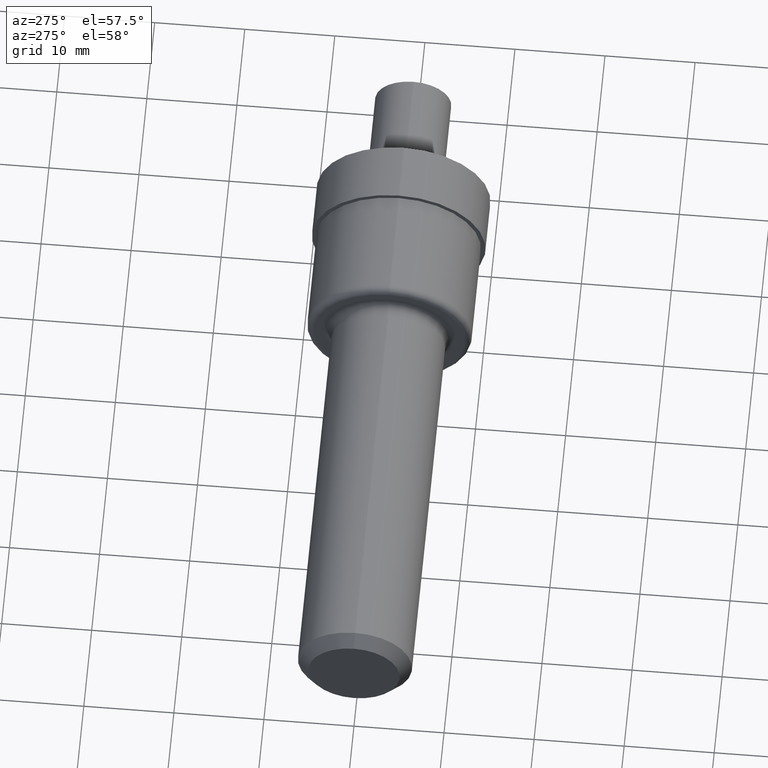
[diagram: clean part render]
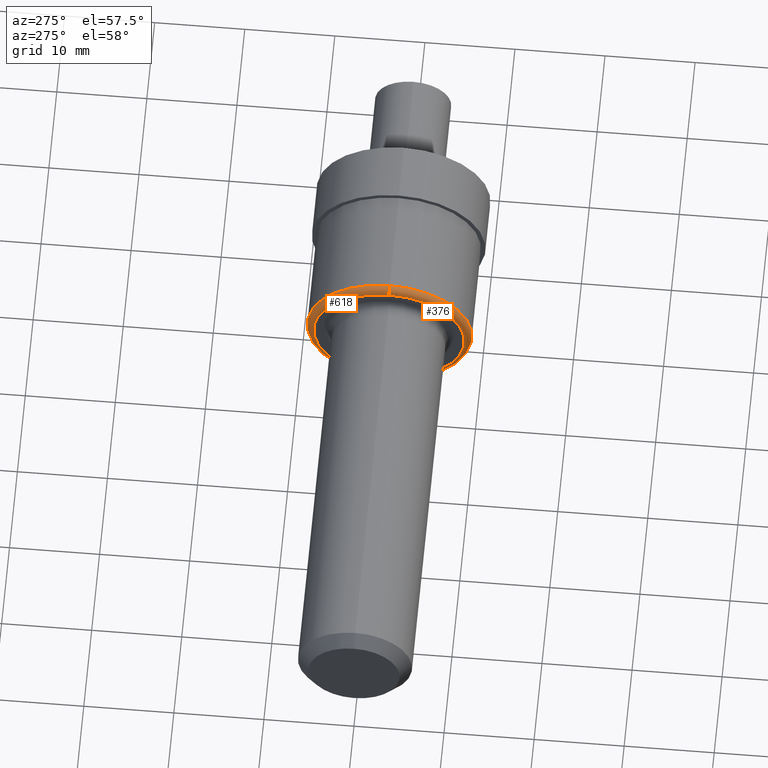
[diagram: same view with one multi-face feature highlighted, each face labeled with its STEP entity id]
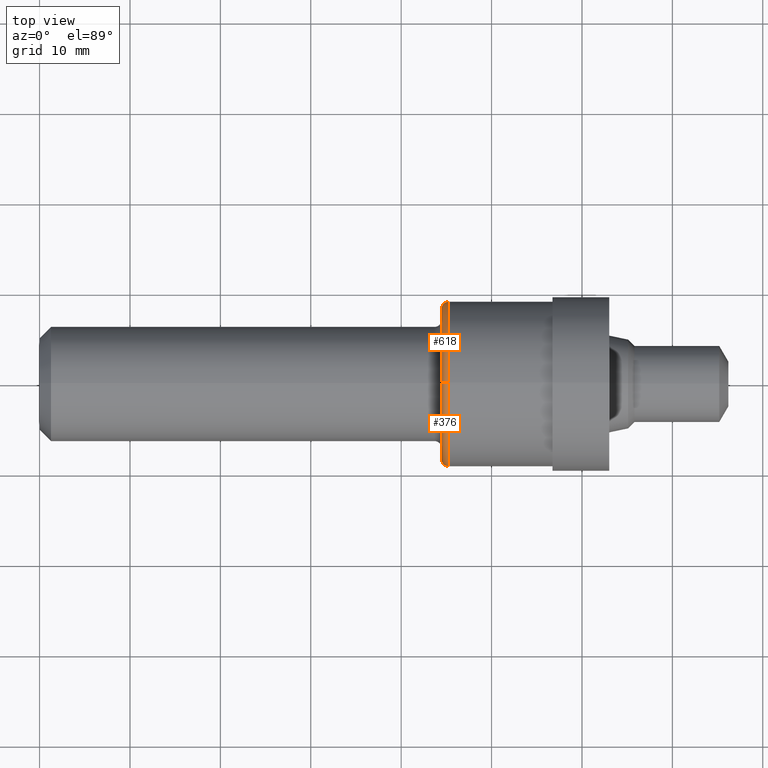
[diagram: same view with one multi-face feature highlighted, each face labeled with its STEP entity id]
A machine part, auxiliary view. The highlighted faces form ONE feature: a constant-radius fillet chain: 2 tangent blend faces with common blend radius 0.762 mm. The faces share edges in the B-rep.
A second angle (top view) of the same feature is appended — it is thin or edge-on in the first view.
Their STEP definitions:
[1] entity #618 (Torus):
#10 = DIRECTION ( 'NONE',  ( 0.0000000000000000000, -1.224646799147352200E-016, 1.000000000000000000 ) ) ;
#88 = DIRECTION ( 'NONE',  ( 0.0000000000000000000, -1.000000000000000000, 0.0000000000000000000 ) ) ;
#123 = CARTESIAN_POINT ( 'NONE',  ( 1.779999999999999800, 0.0000000000000000000, 0.0000000000000000000 ) ) ;
#143 = AXIS2_PLACEMENT_3D ( 'NONE', #662, #279, #229 ) ;
#150 = CARTESIAN_POINT ( 'NONE',  ( 1.750000000000000000, 4.225031457058367200E-017, -0.3299999999999999000 ) ) ;
#162 = CARTESIAN_POINT ( 'NONE',  ( 1.750000000000000000, 0.0000000000000000000, 0.3299999999999999000 ) ) ;
#179 = DIRECTION ( 'NONE',  ( -1.000000000000000000, -0.0000000000000000000, -0.0000000000000000000 ) ) ;
#185 = AXIS2_PLACEMENT_3D ( 'NONE', #409, #88, #462 ) ;
#192 = CIRCLE ( 'NONE', #185, 0.03000000000000002300 ) ;
#207 = EDGE_CURVE ( 'NONE', #317, #487, #616, .T. ) ;
#216 = VERTEX_POINT ( 'NONE', #162 ) ;
#229 = DIRECTION ( 'NONE',  ( 0.0000000000000000000, 0.0000000000000000000, 1.000000000000000000 ) ) ;
#243 = ORIENTED_EDGE ( 'NONE', *, *, #277, .F. ) ;
#277 = EDGE_CURVE ( 'NONE', #216, #487, #533, .T. ) ;
#279 = DIRECTION ( 'NONE',  ( -1.000000000000000000, -0.0000000000000000000, -0.0000000000000000000 ) ) ;
#280 = CARTESIAN_POINT ( 'NONE',  ( 1.779999999999999800, 4.041334437186264000E-017, -0.3299999999999999000 ) ) ;
#289 = CARTESIAN_POINT ( 'NONE',  ( 1.779999999999999800, 0.0000000000000000000, 0.0000000000000000000 ) ) ;
#294 = EDGE_LOOP ( 'NONE', ( #308, #329, #243, #634 ) ) ;
#308 = ORIENTED_EDGE ( 'NONE', *, *, #686, .T. ) ;
#317 = VERTEX_POINT ( 'NONE', #615 ) ;
#318 = AXIS2_PLACEMENT_3D ( 'NONE', #123, #179, #599 ) ;
#322 = VERTEX_POINT ( 'NONE', #402 ) ;
#329 = ORIENTED_EDGE ( 'NONE', *, *, #207, .T. ) ;
#342 = DIRECTION ( 'NONE',  ( 0.0000000000000000000, 0.0000000000000000000, 1.000000000000000000 ) ) ;
#357 = EDGE_CURVE ( 'NONE', #322, #216, #192, .T. ) ;
#402 = CARTESIAN_POINT ( 'NONE',  ( 1.779999999999999800, 0.0000000000000000000, 0.3599999999999999300 ) ) ;
#409 = CARTESIAN_POINT ( 'NONE',  ( 1.779999999999999800, 0.0000000000000000000, 0.3299999999999999000 ) ) ;
#462 = DIRECTION ( 'NONE',  ( 0.0000000000000000000, 0.0000000000000000000, -1.000000000000000000 ) ) ;
#487 = VERTEX_POINT ( 'NONE', #150 ) ;
#488 = DIRECTION ( 'NONE',  ( -0.0000000000000000000, 1.000000000000000000, 1.224646799147353200E-016 ) ) ;
#533 = CIRCLE ( 'NONE', #143, 0.3299999999999999000 ) ;
#544 = CIRCLE ( 'NONE', #575, 0.3599999999999999300 ) ;
#575 = AXIS2_PLACEMENT_3D ( 'NONE', #289, #670, #342 ) ;
#588 = FACE_OUTER_BOUND ( 'NONE', #294, .T. ) ;
#599 = DIRECTION ( 'NONE',  ( 0.0000000000000000000, 0.0000000000000000000, 1.000000000000000000 ) ) ;
#615 = CARTESIAN_POINT ( 'NONE',  ( 1.779999999999999800, 4.408728476930471000E-017, -0.3599999999999999300 ) ) ;
#616 = CIRCLE ( 'NONE', #649, 0.03000000000000002300 ) ;
#618 = ADVANCED_FACE ( 'NONE', ( #588 ), #642, .T. ) ;
#634 = ORIENTED_EDGE ( 'NONE', *, *, #357, .F. ) ;
#642 = TOROIDAL_SURFACE ( 'NONE', #318, 0.3299999999999999000, 0.03000000000000002300 ) ;
#649 = AXIS2_PLACEMENT_3D ( 'NONE', #280, #488, #10 ) ;
#662 = CARTESIAN_POINT ( 'NONE',  ( 1.750000000000000000, 0.0000000000000000000, 0.0000000000000000000 ) ) ;
#670 = DIRECTION ( 'NONE',  ( -1.000000000000000000, -0.0000000000000000000, -0.0000000000000000000 ) ) ;
#686 = EDGE_CURVE ( 'NONE', #322, #317, #544, .T. ) ;
[2] entity #376 (Torus):
#10 = DIRECTION ( 'NONE',  ( 0.0000000000000000000, -1.224646799147352200E-016, 1.000000000000000000 ) ) ;
#14 = EDGE_CURVE ( 'NONE', #487, #216, #262, .T. ) ;
#49 = ORIENTED_EDGE ( 'NONE', *, *, #207, .F. ) ;
#88 = DIRECTION ( 'NONE',  ( 0.0000000000000000000, -1.000000000000000000, 0.0000000000000000000 ) ) ;
#95 = EDGE_CURVE ( 'NONE', #317, #322, #644, .T. ) ;
#132 = DIRECTION ( 'NONE',  ( 0.0000000000000000000, 0.0000000000000000000, 1.000000000000000000 ) ) ;
#150 = CARTESIAN_POINT ( 'NONE',  ( 1.750000000000000000, 4.225031457058367200E-017, -0.3299999999999999000 ) ) ;
#155 = ORIENTED_EDGE ( 'NONE', *, *, #14, .F. ) ;
#162 = CARTESIAN_POINT ( 'NONE',  ( 1.750000000000000000, 0.0000000000000000000, 0.3299999999999999000 ) ) ;
#174 = TOROIDAL_SURFACE ( 'NONE', #363, 0.3299999999999999000, 0.03000000000000002300 ) ;
#185 = AXIS2_PLACEMENT_3D ( 'NONE', #409, #88, #462 ) ;
#192 = CIRCLE ( 'NONE', #185, 0.03000000000000002300 ) ;
#198 = AXIS2_PLACEMENT_3D ( 'NONE', #443, #275, #132 ) ;
#207 = EDGE_CURVE ( 'NONE', #317, #487, #616, .T. ) ;
#216 = VERTEX_POINT ( 'NONE', #162 ) ;
#226 = CARTESIAN_POINT ( 'NONE',  ( 1.779999999999999800, 0.0000000000000000000, 0.0000000000000000000 ) ) ;
#262 = CIRCLE ( 'NONE', #198, 0.3299999999999999000 ) ;
#268 = DIRECTION ( 'NONE',  ( 0.0000000000000000000, 0.0000000000000000000, 1.000000000000000000 ) ) ;
#275 = DIRECTION ( 'NONE',  ( -1.000000000000000000, -0.0000000000000000000, -0.0000000000000000000 ) ) ;
#280 = CARTESIAN_POINT ( 'NONE',  ( 1.779999999999999800, 4.041334437186264000E-017, -0.3299999999999999000 ) ) ;
#317 = VERTEX_POINT ( 'NONE', #615 ) ;
#322 = VERTEX_POINT ( 'NONE', #402 ) ;
#357 = EDGE_CURVE ( 'NONE', #322, #216, #192, .T. ) ;
#363 = AXIS2_PLACEMENT_3D ( 'NONE', #519, #567, #625 ) ;
#376 = ADVANCED_FACE ( 'NONE', ( #479 ), #174, .T. ) ;
#402 = CARTESIAN_POINT ( 'NONE',  ( 1.779999999999999800, 0.0000000000000000000, 0.3599999999999999300 ) ) ;
#409 = CARTESIAN_POINT ( 'NONE',  ( 1.779999999999999800, 0.0000000000000000000, 0.3299999999999999000 ) ) ;
#420 = AXIS2_PLACEMENT_3D ( 'NONE', #226, #493, #268 ) ;
#441 = EDGE_LOOP ( 'NONE', ( #49, #564, #494, #155 ) ) ;
#443 = CARTESIAN_POINT ( 'NONE',  ( 1.750000000000000000, 0.0000000000000000000, 0.0000000000000000000 ) ) ;
#462 = DIRECTION ( 'NONE',  ( 0.0000000000000000000, 0.0000000000000000000, -1.000000000000000000 ) ) ;
#479 = FACE_OUTER_BOUND ( 'NONE', #441, .T. ) ;
#487 = VERTEX_POINT ( 'NONE', #150 ) ;
#488 = DIRECTION ( 'NONE',  ( -0.0000000000000000000, 1.000000000000000000, 1.224646799147353200E-016 ) ) ;
#493 = DIRECTION ( 'NONE',  ( -1.000000000000000000, -0.0000000000000000000, -0.0000000000000000000 ) ) ;
#494 = ORIENTED_EDGE ( 'NONE', *, *, #357, .T. ) ;
#519 = CARTESIAN_POINT ( 'NONE',  ( 1.779999999999999800, 0.0000000000000000000, 0.0000000000000000000 ) ) ;
#564 = ORIENTED_EDGE ( 'NONE', *, *, #95, .T. ) ;
#567 = DIRECTION ( 'NONE',  ( -1.000000000000000000, -0.0000000000000000000, -0.0000000000000000000 ) ) ;
#615 = CARTESIAN_POINT ( 'NONE',  ( 1.779999999999999800, 4.408728476930471000E-017, -0.3599999999999999300 ) ) ;
#616 = CIRCLE ( 'NONE', #649, 0.03000000000000002300 ) ;
#625 = DIRECTION ( 'NONE',  ( 0.0000000000000000000, 0.0000000000000000000, 1.000000000000000000 ) ) ;
#644 = CIRCLE ( 'NONE', #420, 0.3599999999999999300 ) ;
#649 = AXIS2_PLACEMENT_3D ( 'NONE', #280, #488, #10 ) ;